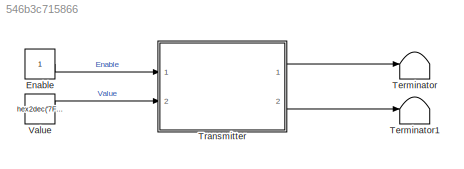
MODEL slx_546b3c715866
KIND model
CONFIG AbsTol = auto
CONFIG EnableMultiTasking = off
CONFIG FixedStep = auto
CONFIG InitFcn = fs = 256e6;
CONFIG MaxStep = auto
CONFIG MinStep = auto
CONFIG RelTol = 1e-3
CONFIG SampleTimeConstraint = Unconstrained
CONFIG Solver = VariableStepAuto
CONFIG SolverName = VariableStepAuto
CONFIG StartTime = 0.0
CONFIG StopTime = (8192*2)/256e6
BLOCK [Constant] Enable
  OutDataTypeStr = boolean
  SampleTime = 1/fs
BLOCK [Terminator] Terminator
BLOCK [Terminator] Terminator1
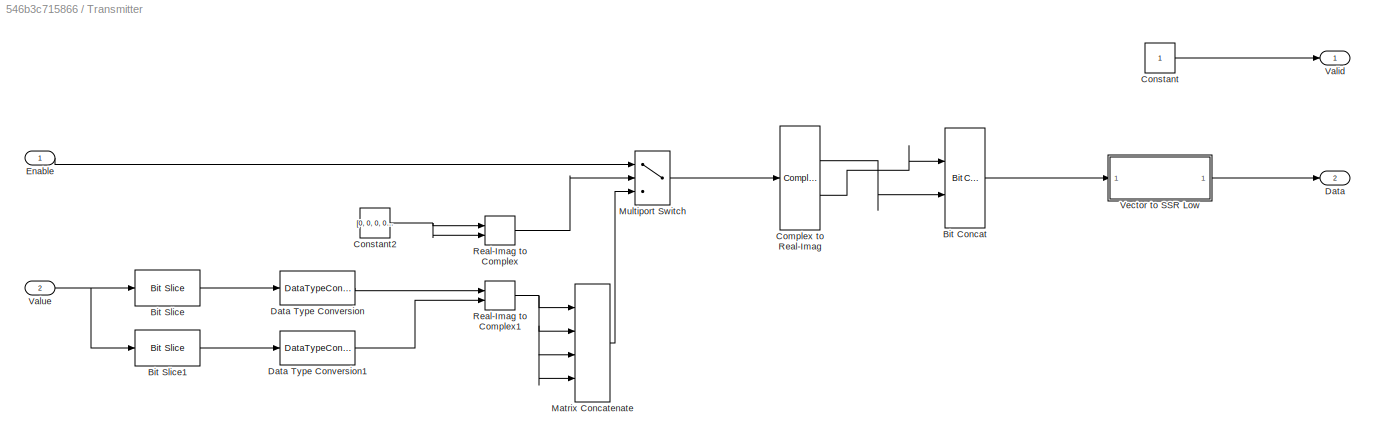
BLOCK [SubSystem] Transmitter
  Ports = [2, 2]
  RequestExecContextInheritance = off
  TreatAsAtomicUnit = on
BLOCK [Reference] Transmitter/Bit Concat  REF=hdlsllib/Logic and Bit
Operations/Bit Concat
  Ports = [2, 1]
  SourceBlock = hdlsllib/Logic and Bit\nOperations/Bit Concat
  SourceProductBaseCode = SL
  SourceType = Bit Concat
BLOCK [Reference] Transmitter/Bit Slice  REF=hdlsllib/Logic and Bit
Operations/Bit Slice
  Ports = [1, 1]
  SourceBlock = hdlsllib/Logic and Bit\nOperations/Bit Slice
  SourceProductBaseCode = SL
  SourceType = Bit Slice
BLOCK [Reference] Transmitter/Bit Slice1  REF=hdlsllib/Logic and Bit
Operations/Bit Slice
  Ports = [1, 1]
  SourceBlock = hdlsllib/Logic and Bit\nOperations/Bit Slice
  SourceProductBaseCode = SL
  SourceType = Bit Slice
BLOCK [ComplexToRealImag] Transmitter/Complex to Real-Imag
  Ports = [1, 2]
BLOCK [Constant] Transmitter/Constant
  OutDataTypeStr = boolean
  SampleTime = -1
BLOCK [Constant] Transmitter/Constant2
  OutDataTypeStr = fixdt(1,16,15)
  SampleTime = -1
  Value = [0, 0, 0, 0]'
  VectorParams1D = off
BLOCK [Outport] Transmitter/Data
  Port = 2
BLOCK [DataTypeConversion] Transmitter/Data Type Conversion
  ConvertRealWorld = Stored Integer (SI)
  OutDataTypeStr = fixdt(1,16,15)
  RndMeth = Floor
  SaturateOnIntegerOverflow = off
BLOCK [DataTypeConversion] Transmitter/Data Type Conversion1
  ConvertRealWorld = Stored Integer (SI)
  OutDataTypeStr = fixdt(1,16,15)
  RndMeth = Floor
  SaturateOnIntegerOverflow = off
BLOCK [Inport] Transmitter/Enable
BLOCK [Concatenate] Transmitter/Matrix Concatenate
  Mode = Multidimensional array
  NumInputs = 4
  Ports = [4, 1]
BLOCK [MultiPortSwitch] Transmitter/Multiport Switch
  DataPortOrder = Zero-based contiguous
  InputSameDT = off
  Inputs = 2
  Ports = [3, 1]
  SaturateOnIntegerOverflow = off
  zeroidx = on
BLOCK [RealImagToComplex] Transmitter/Real-Imag to Complex
  Ports = [2, 1]
BLOCK [RealImagToComplex] Transmitter/Real-Imag to Complex1
  Ports = [2, 1]
BLOCK [Outport] Transmitter/Valid
BLOCK [Inport] Transmitter/Value
  Port = 2
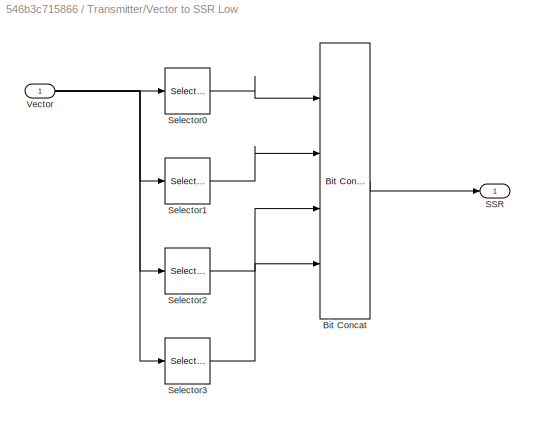
BLOCK [SubSystem] Transmitter/Vector to SSR Low
  Ports = [1, 1]
  RequestExecContextInheritance = off
BLOCK [Reference] Transmitter/Vector to SSR Low/Bit Concat  REF=hdlsllib/Logic and Bit
Operations/Bit Concat
  Ports = [4, 1]
  SourceBlock = hdlsllib/Logic and Bit\nOperations/Bit Concat
  SourceProductBaseCode = SL
  SourceType = Bit Concat
BLOCK [Outport] Transmitter/Vector to SSR Low/SSR
BLOCK [Selector] Transmitter/Vector to SSR Low/Selector0
  IndexOptions = Index vector (dialog)
  Indices = 4
  InputPortWidth = 4
  OutputSizes = 1
  Ports = [1, 1]
BLOCK [Selector] Transmitter/Vector to SSR Low/Selector1
  IndexOptions = Index vector (dialog)
  Indices = 3
  InputPortWidth = 4
  OutputSizes = 1
  Ports = [1, 1]
BLOCK [Selector] Transmitter/Vector to SSR Low/Selector2
  IndexOptions = Index vector (dialog)
  Indices = 2
  InputPortWidth = 4
  OutputSizes = 1
  Ports = [1, 1]
BLOCK [Selector] Transmitter/Vector to SSR Low/Selector3
  IndexOptions = Index vector (dialog)
  Indices = 1
  InputPortWidth = 4
  OutputSizes = 1
  Ports = [1, 1]
BLOCK [Inport] Transmitter/Vector to SSR Low/Vector
BLOCK [Constant] Value
  OutDataTypeStr = uint32
  SampleTime = 1/fs
  Value = hex2dec('7FFF7FFF')
LINE Enable:1 -> Transmitter:1
LINE Transmitter/Bit Concat:1 -> Transmitter/Vector to SSR Low:1
LINE Transmitter/Bit Slice1:1 -> Transmitter/Data Type Conversion1:1
LINE Transmitter/Bit Slice:1 -> Transmitter/Data Type Conversion:1
LINE Transmitter/Complex to Real-Imag:1 -> Transmitter/Bit Concat:2
LINE Transmitter/Complex to Real-Imag:2 -> Transmitter/Bit Concat:1
NET Transmitter/Constant2:1 -> Transmitter/Real-Imag to Complex:1, Transmitter/Real-Imag to Complex:2
LINE Transmitter/Constant:1 -> Transmitter/Valid:1
LINE Transmitter/Data Type Conversion1:1 -> Transmitter/Real-Imag to Complex1:2
LINE Transmitter/Data Type Conversion:1 -> Transmitter/Real-Imag to Complex1:1
LINE Transmitter/Enable:1 -> Transmitter/Multiport Switch:1
LINE Transmitter/Matrix Concatenate:1 -> Transmitter/Multiport Switch:3
LINE Transmitter/Multiport Switch:1 -> Transmitter/Complex to Real-Imag:1
NET Transmitter/Real-Imag to Complex1:1 -> Transmitter/Matrix Concatenate:1, Transmitter/Matrix Concatenate:2, Transmitter/Matrix Concatenate:3, Transmitter/Matrix Concatenate:4
LINE Transmitter/Real-Imag to Complex:1 -> Transmitter/Multiport Switch:2
NET Transmitter/Value:1 -> Transmitter/Bit Slice1:1, Transmitter/Bit Slice:1
LINE Transmitter/Vector to SSR Low/Bit Concat:1 -> Transmitter/Vector to SSR Low/SSR:1
LINE Transmitter/Vector to SSR Low/Selector0:1 -> Transmitter/Vector to SSR Low/Bit Concat:1
LINE Transmitter/Vector to SSR Low/Selector1:1 -> Transmitter/Vector to SSR Low/Bit Concat:2
LINE Transmitter/Vector to SSR Low/Selector2:1 -> Transmitter/Vector to SSR Low/Bit Concat:3
LINE Transmitter/Vector to SSR Low/Selector3:1 -> Transmitter/Vector to SSR Low/Bit Concat:4
NET Transmitter/Vector to SSR Low/Vector:1 -> Transmitter/Vector to SSR Low/Selector0:1, Transmitter/Vector to SSR Low/Selector1:1, Transmitter/Vector to SSR Low/Selector2:1, Transmitter/Vector to SSR Low/Selector3:1
LINE Transmitter/Vector to SSR Low:1 -> Transmitter/Data:1
LINE Transmitter:1 -> Terminator:1
LINE Transmitter:2 -> Terminator1:1
LINE Value:1 -> Transmitter:2
note: NET lines group one-source signal fan-out (src -> all destinations, sorted); 1:1 wires keep LINE
